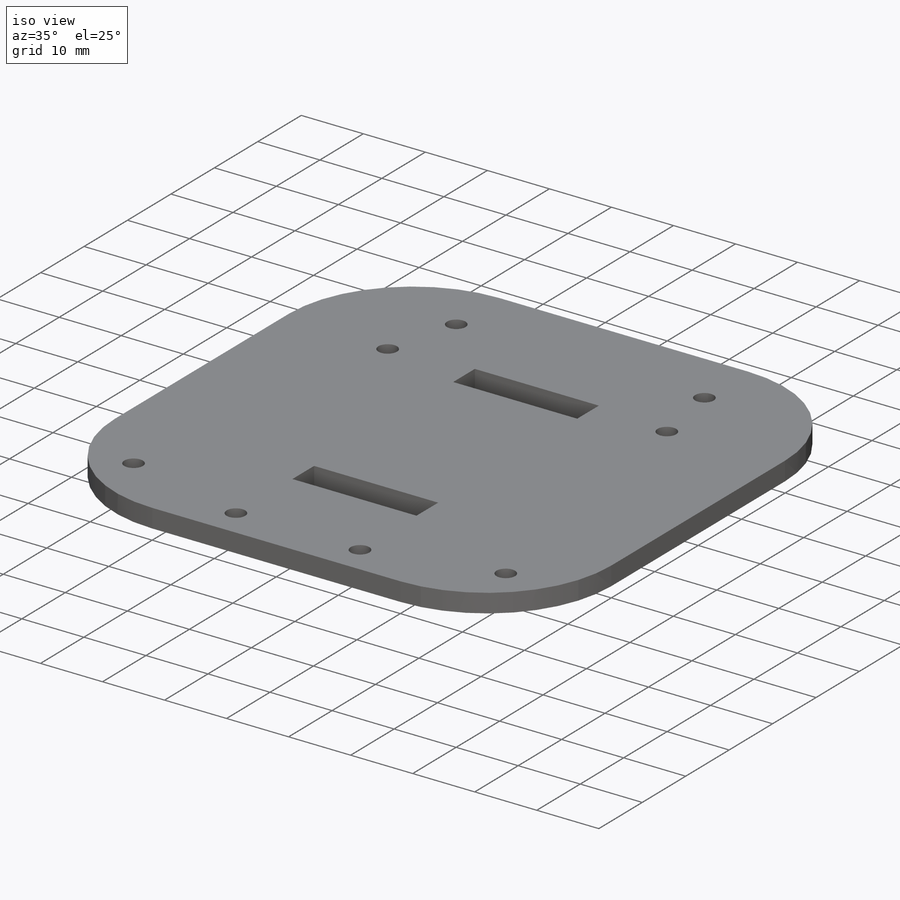
[diagram: iso view]
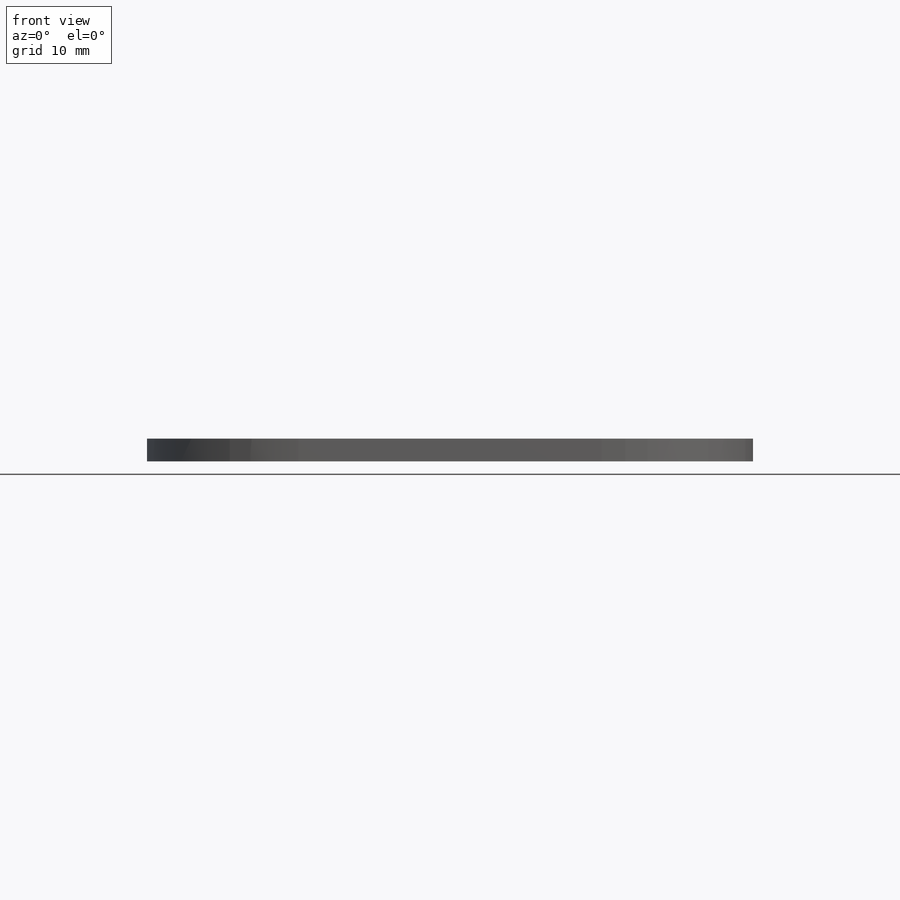
[diagram: front view]
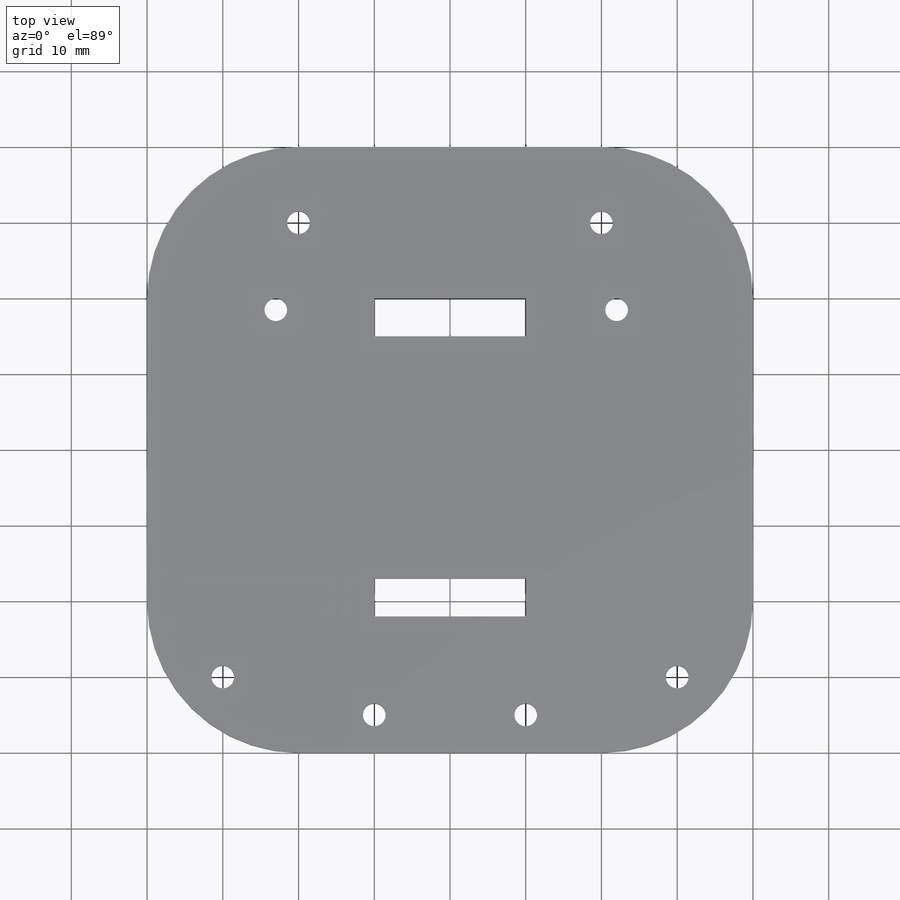
[diagram: top view]
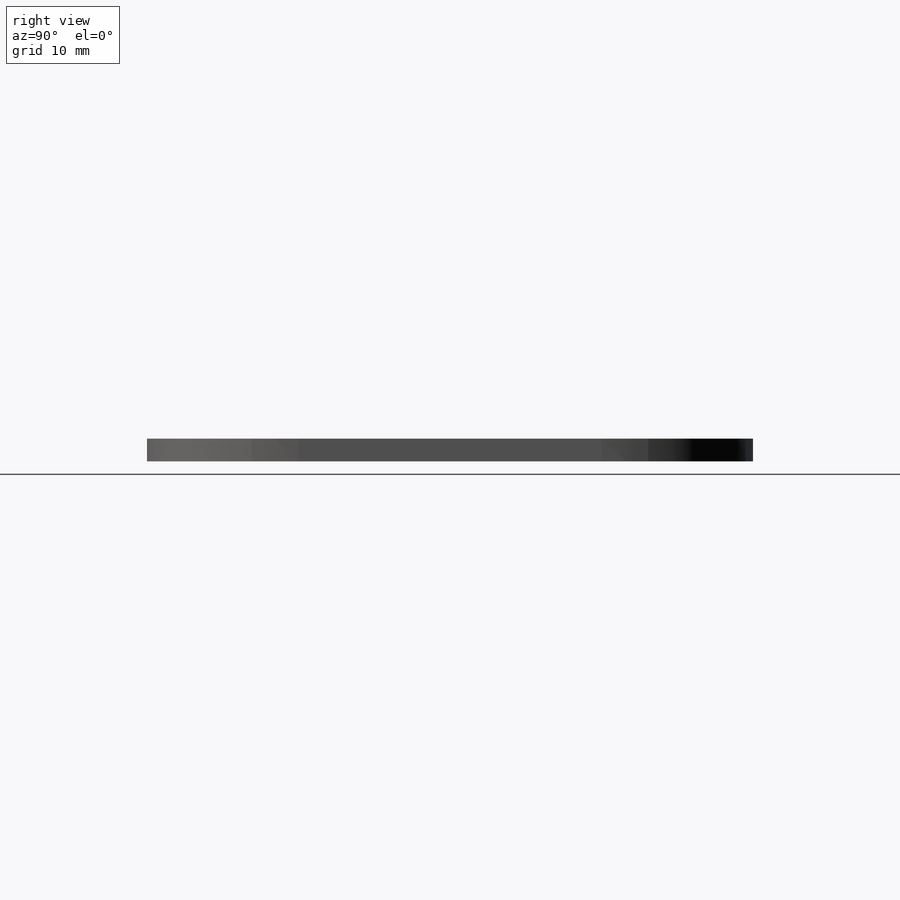
[diagram: right view]
SOLIDWORKS PART (.sldprt)
format: sldprt  version: not decoded by parser v0  size: 533,504 bytes
history: native  units: mm
features: sketch x6, cut_extrude x5, fillet x4, material x1, extrude x1 (+13 scaffold rows collapsed)
feature tree (30):
  scaffold x13  (default folders/planes/origin — collapsed)
  material  "Pine"
  sketch  "Sketch3"  dims[D1=80.0mm D2=80.0mm]
  extrude  "Boss-Extrude1"  Depth=3mm
  fillet  "Fillet3"  Radius=20mm
  fillet  "Fillet4"  Radius=20mm
  fillet  "Fillet5"  Radius=20mm
  fillet  "Fillet6"  Radius=20mm
  sketch  "Sketch6"  dims[c1.D1=~1.999403mm c1.D3=~2.269202mm c2.D1=10.0mm c2.D2=1.5mm c2.D3=1.5mm c2.D4=10.0mm c3.D2=21.5mm c3.D3=21.5mm c3.D1=17.0mm c3.D4=18.0mm]
  cut_extrude  "Cut-Extrude2"  Depth=3mm
  sketch  "Sketch9"  dims[c1.D1=~1.513087mm c1.D3=~2.156395mm c2.D1=10.0mm c2.D2=2.0mm c2.D3=10.0mm c2.D4=3.0mm c3.D3=10.0mm c3.D1=10.0mm c3.D2=10.0mm c3.D4=10.0mm]
  cut_extrude  "Cut-Extrude3"  Depth=3mm
  sketch  "Sketch12"  dims[c1.D1=~3.180972mm c1.D3=~3.39212mm c2.D1=5.0mm c2.D2=30.0mm c2.D3=5.0mm c2.D4=30.0mm]
  cut_extrude  "Cut-Extrude6"  Depth=3mm
  sketch  "Sketch13"  dims[c1.D1=~2.19186mm c1.D3=~1.306973mm c2.D1=20.0mm c2.D2=10.0mm c2.D3=20.0mm c2.D4=10.0mm]
  cut_extrude  "Cut-Extrude7"  Depth=3mm
  sketch  "Sketch14"  dims[c1.D1=5.0mm c1.20=20.0mm c1.D2=20.0mm c1.D3=5.0mm c1.D4=30.0mm c2.D3=5.0mm c2.D5=20.0mm c2.D6=18.0mm c2.D7=30.0mm]
  cut_extrude  "Cut-Extrude8"  Depth=10mm
decode coverage: 16 of 16 modeling features carry decoded parameters
note: ~ marks probable driven/reference dimensions
note: suppression state not decoded; provenance and decode notes live in map.json
